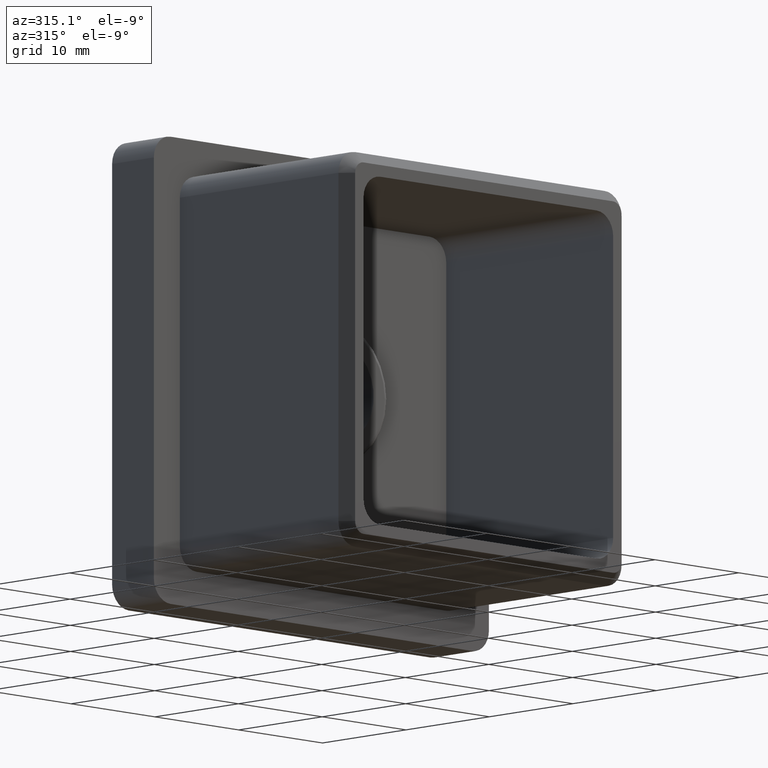
[diagram: clean part render]
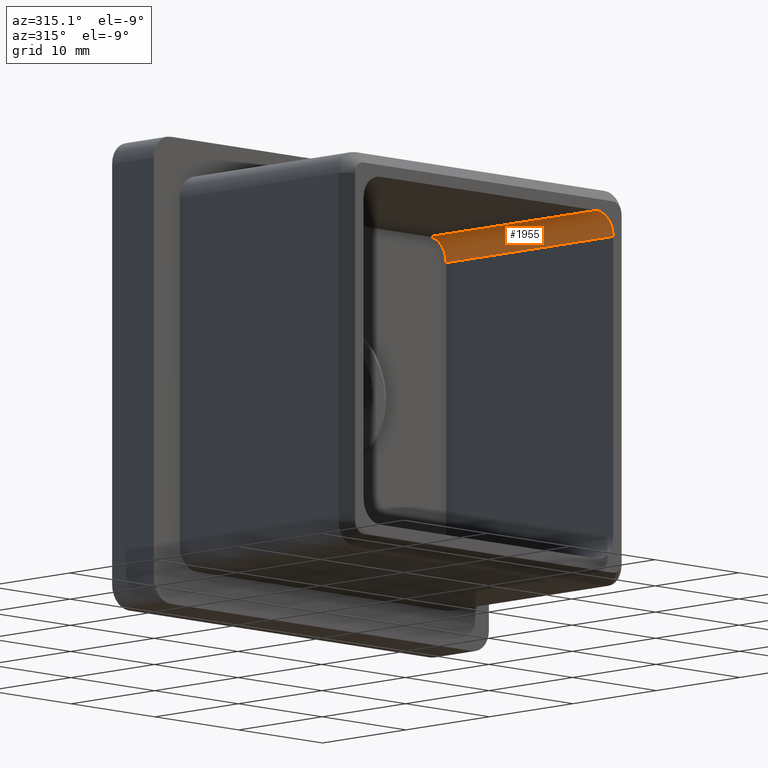
[diagram: same view with one face highlighted and labeled with its STEP entity id]
A machine part, auxiliary view. The second image highlights one B-rep face of the part: STEP entity #1955.
In plain terms, the highlighted cylindrical surface (edge-blend (fillet) strip) has radius 2 mm, axis along (0, -1, 0).
Its self-contained STEP definition (entity closure, byte-faithful):
#983 = DIRECTION ( 'NONE',  ( 0.0000000000000000000, -1.000000000000000000, -0.0000000000000000000 ) ) ;
#1694 = DIRECTION ( 'NONE',  ( 0.0000000000000000000, 0.0000000000000000000, 1.000000000000000000 ) ) ;
#1955 = ADVANCED_FACE ( 'NONE', ( #5610 ), #2984, .F. ) ;
#1998 = CARTESIAN_POINT ( 'NONE',  ( 14.90000000000000600, 0.0000000000000000000, 12.90000000000000600 ) ) ;
#2038 = AXIS2_PLACEMENT_3D ( 'NONE', #12847, #15455, #1694 ) ;
#2580 = VECTOR ( 'NONE', #983, 1000.000000000000000 ) ;
#2984 = CYLINDRICAL_SURFACE ( 'NONE', #12419, 2.000000000000000000 ) ;
#3078 = CIRCLE ( 'NONE', #12686, 2.000000000000000000 ) ;
#3261 = CARTESIAN_POINT ( 'NONE',  ( 14.90000000000000600, -20.00000000000000000, 12.90000000000000600 ) ) ;
#4596 = VERTEX_POINT ( 'NONE', #16210 ) ;
#4723 = DIRECTION ( 'NONE',  ( 0.0000000000000000000, -1.000000000000000000, 0.0000000000000000000 ) ) ;
#4746 = DIRECTION ( 'NONE',  ( 0.0000000000000000000, 0.0000000000000000000, -1.000000000000000000 ) ) ;
#5610 = FACE_OUTER_BOUND ( 'NONE', #13929, .T. ) ;
#5670 = EDGE_CURVE ( 'NONE', #6983, #15295, #6665, .T. ) ;
#6120 = DIRECTION ( 'NONE',  ( 0.0000000000000000000, 0.0000000000000000000, -1.000000000000000000 ) ) ;
#6665 = LINE ( 'NONE', #1998, #14436 ) ;
#6983 = VERTEX_POINT ( 'NONE', #3261 ) ;
#7435 = CARTESIAN_POINT ( 'NONE',  ( 12.90000000000000600, -20.00000000000000000, 12.90000000000000600 ) ) ;
#8759 = CARTESIAN_POINT ( 'NONE',  ( 14.90000000000000600, 0.0000000000000000000, 12.90000000000000600 ) ) ;
#10123 = ORIENTED_EDGE ( 'NONE', *, *, #17270, .F. ) ;
#10124 = CARTESIAN_POINT ( 'NONE',  ( 12.90000000000000600, -20.00000000000000000, 12.90000000000000600 ) ) ;
#10924 = CARTESIAN_POINT ( 'NONE',  ( 12.90000000000000700, 0.0000000000000000000, 14.90000000000000600 ) ) ;
#11485 = EDGE_CURVE ( 'NONE', #4596, #6983, #3078, .T. ) ;
#11681 = DIRECTION ( 'NONE',  ( -0.0000000000000000000, 1.000000000000000000, -0.0000000000000000000 ) ) ;
#12092 = CIRCLE ( 'NONE', #2038, 2.000000000000000000 ) ;
#12224 = ORIENTED_EDGE ( 'NONE', *, *, #16128, .F. ) ;
#12419 = AXIS2_PLACEMENT_3D ( 'NONE', #7435, #4723, #6120 ) ;
#12686 = AXIS2_PLACEMENT_3D ( 'NONE', #10124, #11681, #4746 ) ;
#12698 = ORIENTED_EDGE ( 'NONE', *, *, #11485, .F. ) ;
#12847 = CARTESIAN_POINT ( 'NONE',  ( 12.90000000000000600, 0.0000000000000000000, 12.90000000000000600 ) ) ;
#13929 = EDGE_LOOP ( 'NONE', ( #12698, #12224, #10123, #17385 ) ) ;
#14436 = VECTOR ( 'NONE', #15954, 1000.000000000000000 ) ;
#15295 = VERTEX_POINT ( 'NONE', #8759 ) ;
#15455 = DIRECTION ( 'NONE',  ( -0.0000000000000000000, -1.000000000000000000, -0.0000000000000000000 ) ) ;
#15954 = DIRECTION ( 'NONE',  ( 0.0000000000000000000, 1.000000000000000000, 0.0000000000000000000 ) ) ;
#16027 = CARTESIAN_POINT ( 'NONE',  ( 12.90000000000000600, -20.00000000000000000, 14.90000000000000600 ) ) ;
#16128 = EDGE_CURVE ( 'NONE', #17155, #4596, #17339, .T. ) ;
#16210 = CARTESIAN_POINT ( 'NONE',  ( 12.90000000000000700, -20.00000000000000000, 14.90000000000000600 ) ) ;
#17155 = VERTEX_POINT ( 'NONE', #10924 ) ;
#17270 = EDGE_CURVE ( 'NONE', #15295, #17155, #12092, .T. ) ;
#17339 = LINE ( 'NONE', #16027, #2580 ) ;
#17385 = ORIENTED_EDGE ( 'NONE', *, *, #5670, .F. ) ;